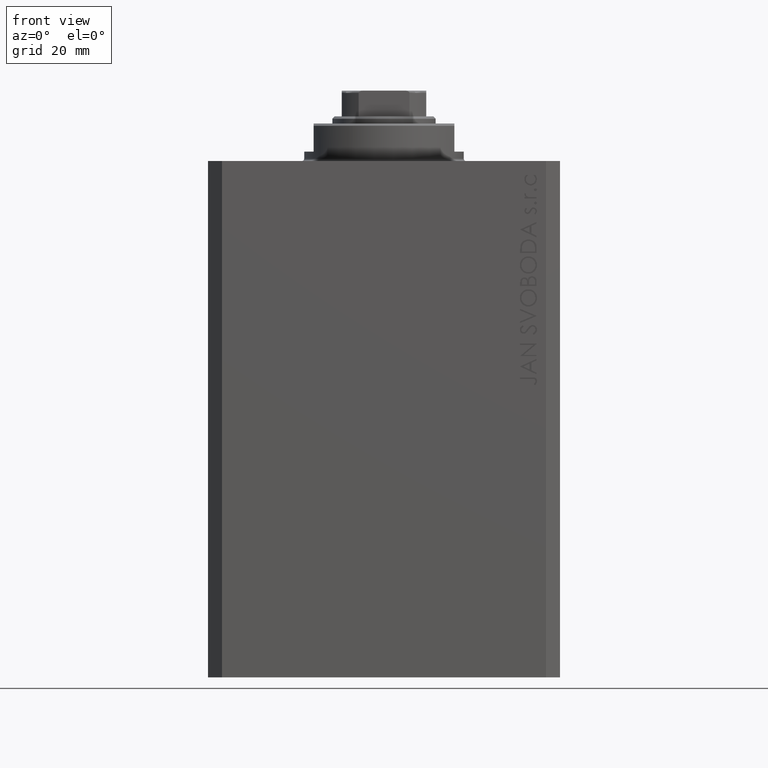
[diagram: clean part render]
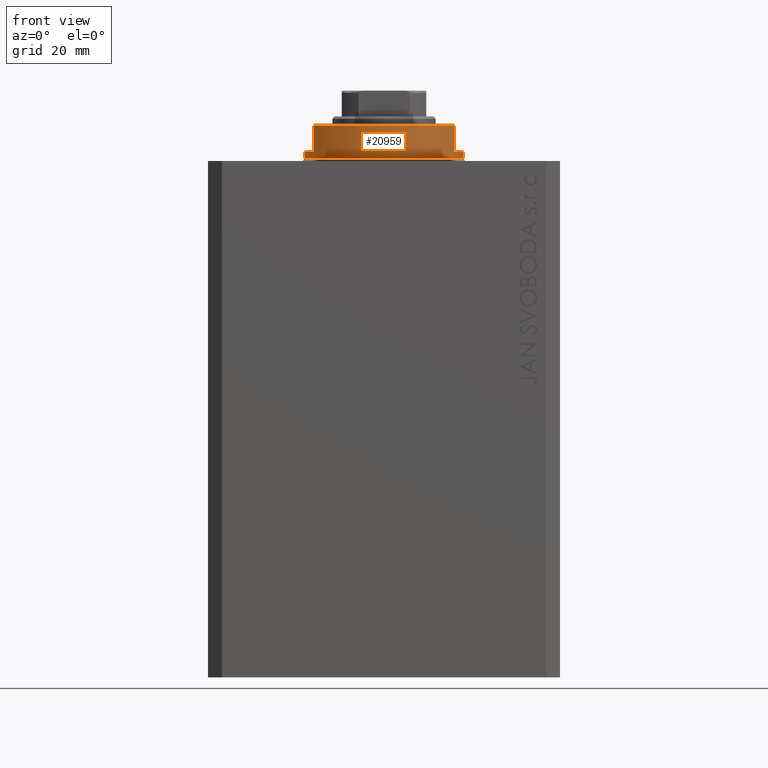
[diagram: same view with one face highlighted and labeled with its STEP entity id]
A machine part, front view. The second image highlights one B-rep face of the part: STEP entity #20959.
In plain terms, the highlighted cylindrical surface (partial cylindrical patch) has radius 17 mm, axis along (0, 0, -1).
Its self-contained STEP definition (entity closure, byte-faithful):
#26 = VERTEX_POINT ( 'NONE', #13040 ) ;
#140 = VERTEX_POINT ( 'NONE', #31452 ) ;
#1382 = DIRECTION ( 'NONE',  ( -0.000000000000000000, -0.000000000000000000, -1.000000000000000000 ) ) ;
#1614 = DIRECTION ( 'NONE',  ( -1.000000000000000000, 0.000000000000000000, 0.000000000000000000 ) ) ;
#2068 = CARTESIAN_POINT ( 'NONE',  ( 17.00000000000000000, 0.000000000000000000, -8.000000000000000000 ) ) ;
#4082 = ORIENTED_EDGE ( 'NONE', *, *, #31413, .F. ) ;
#4481 = DIRECTION ( 'NONE',  ( 0.000000000000000000, 0.000000000000000000, -1.000000000000000000 ) ) ;
#4569 = DIRECTION ( 'NONE',  ( 0.000000000000000000, 0.000000000000000000, -1.000000000000000000 ) ) ;
#5372 = CYLINDRICAL_SURFACE ( 'NONE', #12029, 17.00000000000000000 ) ;
#5831 = FACE_OUTER_BOUND ( 'NONE', #37656, .T. ) ;
#6147 = DIRECTION ( 'NONE',  ( -1.000000000000000000, 0.000000000000000000, 0.000000000000000000 ) ) ;
#6538 = LINE ( 'NONE', #41139, #14232 ) ;
#8117 = DIRECTION ( 'NONE',  ( 1.000000000000000000, 0.000000000000000000, 0.000000000000000000 ) ) ;
#8390 = DIRECTION ( 'NONE',  ( -1.000000000000000000, 0.000000000000000000, 0.000000000000000000 ) ) ;
#10783 = EDGE_CURVE ( 'NONE', #12159, #140, #34959, .T. ) ;
#11378 = AXIS2_PLACEMENT_3D ( 'NONE', #23878, #20514, #6147 ) ;
#11425 = LINE ( 'NONE', #35709, #14040 ) ;
#11531 = CARTESIAN_POINT ( 'NONE',  ( 0.000000000000000000, 0.000000000000000000, -2.000000000000000000 ) ) ;
#12029 = AXIS2_PLACEMENT_3D ( 'NONE', #39539, #30098, #13003 ) ;
#12159 = VERTEX_POINT ( 'NONE', #35243 ) ;
#12296 = VERTEX_POINT ( 'NONE', #18309 ) ;
#13003 = DIRECTION ( 'NONE',  ( 1.000000000000000000, 0.000000000000000000, 0.000000000000000000 ) ) ;
#13040 = CARTESIAN_POINT ( 'NONE',  ( -14.99999999999999645, -8.000000000000003553, -2.000000000000000000 ) ) ;
#13598 = ORIENTED_EDGE ( 'NONE', *, *, #14073, .T. ) ;
#13857 = CIRCLE ( 'NONE', #36855, 17.00000000000000000 ) ;
#14040 = VECTOR ( 'NONE', #39509, 1000.000000000000000 ) ;
#14073 = EDGE_CURVE ( 'NONE', #32794, #38297, #42292, .T. ) ;
#14232 = VECTOR ( 'NONE', #14383, 1000.000000000000000 ) ;
#14264 = CIRCLE ( 'NONE', #11378, 17.00000000000000000 ) ;
#14383 = DIRECTION ( 'NONE',  ( -0.000000000000000000, -0.000000000000000000, 1.000000000000000000 ) ) ;
#14623 = CARTESIAN_POINT ( 'NONE',  ( 0.000000000000000000, 0.000000000000000000, -0.5000000000000004441 ) ) ;
#15049 = CARTESIAN_POINT ( 'NONE',  ( 17.00000000000000000, 0.000000000000000000, -2.000000000000000000 ) ) ;
#15197 = ORIENTED_EDGE ( 'NONE', *, *, #29479, .T. ) ;
#15719 = VECTOR ( 'NONE', #4481, 1000.000000000000000 ) ;
#18026 = CARTESIAN_POINT ( 'NONE',  ( 0.000000000000000000, 0.000000000000000000, -7.500000000000007105 ) ) ;
#18309 = CARTESIAN_POINT ( 'NONE',  ( -17.00000000000000000, 2.081899558550500280E-15, -2.000000000000000000 ) ) ;
#18768 = EDGE_CURVE ( 'NONE', #26549, #32794, #36892, .T. ) ;
#20514 = DIRECTION ( 'NONE',  ( 0.000000000000000000, 0.000000000000000000, -1.000000000000000000 ) ) ;
#20959 = ADVANCED_FACE ( 'NONE', ( #5831 ), #5372, .T. ) ;
#22385 = ORIENTED_EDGE ( 'NONE', *, *, #18768, .T. ) ;
#22742 = AXIS2_PLACEMENT_3D ( 'NONE', #18026, #35124, #1614 ) ;
#23761 = VECTOR ( 'NONE', #29703, 1000.000000000000000 ) ;
#23878 = CARTESIAN_POINT ( 'NONE',  ( 0.000000000000000000, 0.000000000000000000, -2.000000000000000000 ) ) ;
#25601 = ORIENTED_EDGE ( 'NONE', *, *, #29634, .F. ) ;
#26199 = CARTESIAN_POINT ( 'NONE',  ( -15.00000000000000000, -8.000000000000001776, -8.000000000000000000 ) ) ;
#26549 = VERTEX_POINT ( 'NONE', #15049 ) ;
#26750 = ORIENTED_EDGE ( 'NONE', *, *, #27804, .F. ) ;
#27804 = EDGE_CURVE ( 'NONE', #12296, #38297, #6538, .T. ) ;
#29479 = EDGE_CURVE ( 'NONE', #26, #12159, #35277, .T. ) ;
#29634 = EDGE_CURVE ( 'NONE', #26, #12296, #14264, .T. ) ;
#29703 = DIRECTION ( 'NONE',  ( -0.000000000000000000, -0.000000000000000000, 1.000000000000000000 ) ) ;
#30098 = DIRECTION ( 'NONE',  ( -0.000000000000000000, -0.000000000000000000, 1.000000000000000000 ) ) ;
#31413 = EDGE_CURVE ( 'NONE', #26549, #33466, #13857, .T. ) ;
#31452 = CARTESIAN_POINT ( 'NONE',  ( 15.00000000000000000, -8.000000000000001776, -7.500000000000007105 ) ) ;
#31873 = CARTESIAN_POINT ( 'NONE',  ( -17.00000000000000000, 2.081899558550500280E-15, -0.5000000000000004441 ) ) ;
#32794 = VERTEX_POINT ( 'NONE', #37096 ) ;
#33466 = VERTEX_POINT ( 'NONE', #36326 ) ;
#34959 = CIRCLE ( 'NONE', #22742, 17.00000000000000000 ) ;
#35124 = DIRECTION ( 'NONE',  ( 0.000000000000000000, 0.000000000000000000, 1.000000000000000000 ) ) ;
#35243 = CARTESIAN_POINT ( 'NONE',  ( -15.00000000000000000, -8.000000000000001776, -7.500000000000007105 ) ) ;
#35277 = LINE ( 'NONE', #26199, #15719 ) ;
#35709 = CARTESIAN_POINT ( 'NONE',  ( 15.00000000000000000, -8.000000000000001776, -8.000000000000000000 ) ) ;
#36326 = CARTESIAN_POINT ( 'NONE',  ( 14.99999999999999645, -8.000000000000003553, -2.000000000000000000 ) ) ;
#36855 = AXIS2_PLACEMENT_3D ( 'NONE', #11531, #4569, #8390 ) ;
#36892 = LINE ( 'NONE', #2068, #23761 ) ;
#37096 = CARTESIAN_POINT ( 'NONE',  ( 17.00000000000000000, 0.000000000000000000, -0.5000000000000004441 ) ) ;
#37149 = ORIENTED_EDGE ( 'NONE', *, *, #10783, .T. ) ;
#37656 = EDGE_LOOP ( 'NONE', ( #26750, #25601, #15197, #37149, #40668, #4082, #22385, #13598 ) ) ;
#38174 = EDGE_CURVE ( 'NONE', #33466, #140, #11425, .T. ) ;
#38297 = VERTEX_POINT ( 'NONE', #31873 ) ;
#39431 = AXIS2_PLACEMENT_3D ( 'NONE', #14623, #1382, #8117 ) ;
#39509 = DIRECTION ( 'NONE',  ( 0.000000000000000000, 0.000000000000000000, -1.000000000000000000 ) ) ;
#39539 = CARTESIAN_POINT ( 'NONE',  ( 0.000000000000000000, 0.000000000000000000, -8.000000000000000000 ) ) ;
#40668 = ORIENTED_EDGE ( 'NONE', *, *, #38174, .F. ) ;
#41139 = CARTESIAN_POINT ( 'NONE',  ( -17.00000000000000000, 2.081899558550500280E-15, -8.000000000000000000 ) ) ;
#42292 = CIRCLE ( 'NONE', #39431, 17.00000000000000000 ) ;